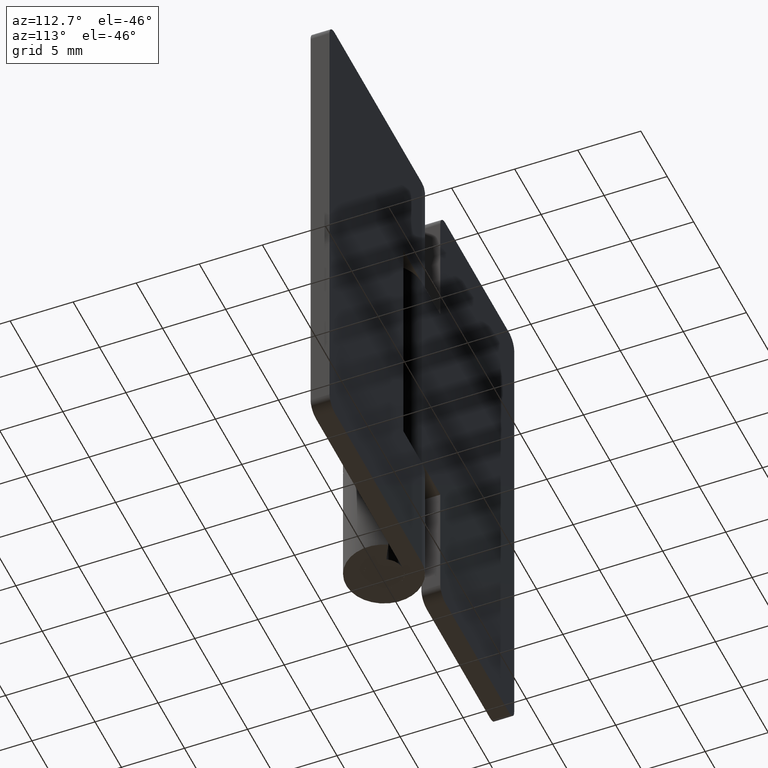
[diagram: clean part render]
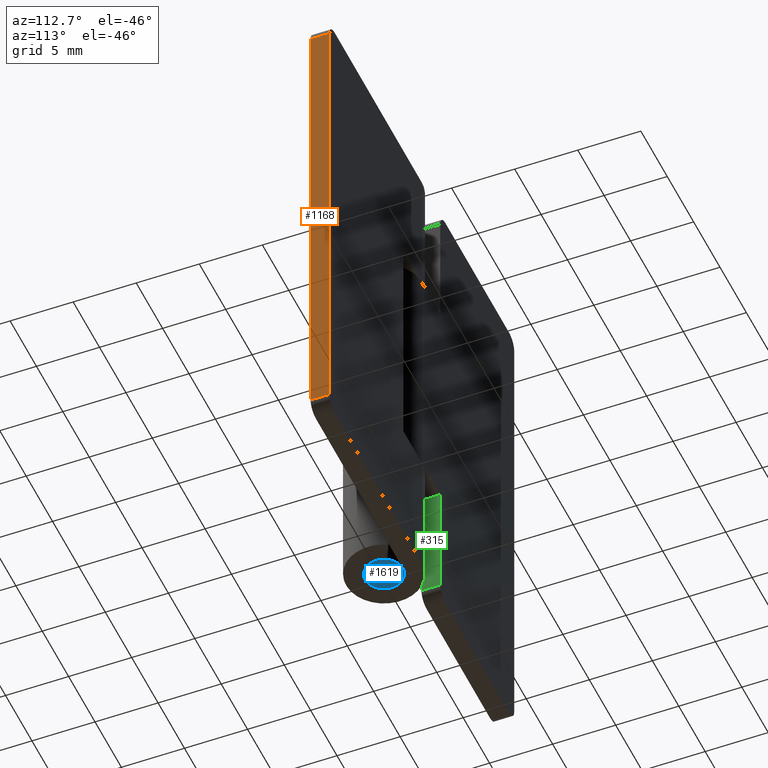
[diagram: same view with three faces highlighted in distinct colors, each labeled with its STEP entity id]
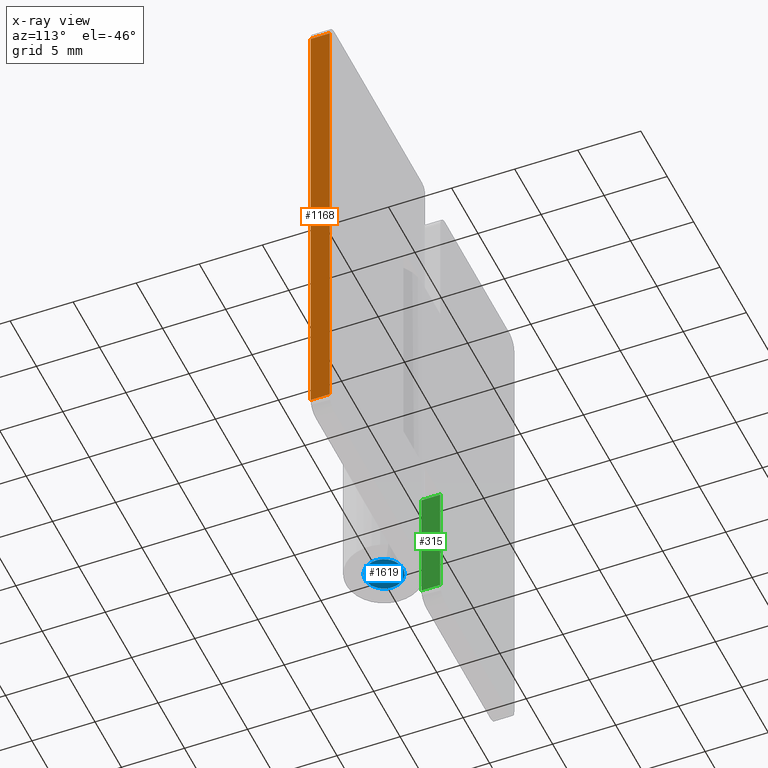
[diagram: x-ray of the same camera — body ghosted, the three highlighted faces saturated]
A machine part, auxiliary view with three faces highlighted in distinct colors.
The next image is the same camera in x-ray (body ghosted, the three faces saturated) — at least one of them is partly hidden behind the body in this view.
Their STEP definitions:

[orange] entity #1168 — the highlighted face is a freeform B-spline surface patch.
#725=CARTESIAN_POINT('',(17.500000000000000,3.0,1.0));
#726=VERTEX_POINT('',#725);
#742=CARTESIAN_POINT('',(17.500000000000000,1.500000000000000,1.0));
#743=VERTEX_POINT('',#742);
#744=CARTESIAN_POINT('',(17.500000000000000,1.500000000000000,1.0));
#745=CARTESIAN_POINT('',(17.500000000000000,3.0,1.0));
#746=QUASI_UNIFORM_CURVE('',1,(#744,#745),.UNSPECIFIED.,.F.,.U.);
#747=EDGE_CURVE('',#743,#726,#746,.T.);
#788=CARTESIAN_POINT('',(17.500000000000000,3.0,39.0));
#789=VERTEX_POINT('',#788);
#810=CARTESIAN_POINT('',(17.500000000000000,1.500000000000000,39.0));
#811=VERTEX_POINT('',#810);
#825=CARTESIAN_POINT('',(17.500000000000000,3.0,39.0));
#826=CARTESIAN_POINT('',(17.500000000000000,1.500000000000000,39.0));
#827=QUASI_UNIFORM_CURVE('',1,(#825,#826),.UNSPECIFIED.,.F.,.U.);
#828=EDGE_CURVE('',#789,#811,#827,.T.);
#1149=CARTESIAN_POINT('',(17.500000000000000,1.425075002907291,40.898099926348621));
#1150=CARTESIAN_POINT('',(17.500000000000000,1.425075002907291,-0.898100945588053));
#1151=CARTESIAN_POINT('',(17.500000000000000,3.074925037325845,40.898099926348621));
#1152=CARTESIAN_POINT('',(17.500000000000000,3.074925037325845,-0.898100945588053));
#1153=B_SPLINE_SURFACE_WITH_KNOTS('',1,1,((#1149,#1151),(#1150,#1152)),.UNSPECIFIED.,.F.,.F.,.U.,(2,2),(2,2),(0.0,41.796200871936684),(0.041708334948495,0.958291687403247),.UNSPECIFIED.);
#1154=CARTESIAN_POINT('',(17.500000000000000,1.500000000000000,39.0));
#1155=CARTESIAN_POINT('',(17.500000000000000,1.500000000000000,1.0));
#1156=QUASI_UNIFORM_CURVE('',1,(#1154,#1155),.UNSPECIFIED.,.F.,.U.);
#1157=EDGE_CURVE('',#811,#743,#1156,.T.);
#1158=ORIENTED_EDGE('',*,*,#1157,.T.);
#1159=ORIENTED_EDGE('',*,*,#747,.T.);
#1160=CARTESIAN_POINT('',(17.500000000000000,3.0,39.0));
#1161=CARTESIAN_POINT('',(17.500000000000000,3.0,1.0));
#1162=QUASI_UNIFORM_CURVE('',1,(#1160,#1161),.UNSPECIFIED.,.F.,.U.);
#1163=EDGE_CURVE('',#789,#726,#1162,.T.);
#1164=ORIENTED_EDGE('',*,*,#1163,.F.);
#1165=ORIENTED_EDGE('',*,*,#828,.T.);
#1166=EDGE_LOOP('',(#1158,#1159,#1164,#1165));
#1167=FACE_OUTER_BOUND('',#1166,.T.);
#1168=ADVANCED_FACE('',(#1167),#1153,.T.);

[blue] entity #1619 — the highlighted face is a freeform B-spline surface patch.
#1440=CARTESIAN_POINT('',(0.177048581627317,-1.489514618839295,-4.543085E-015));
#1441=VERTEX_POINT('',#1440);
#1442=CARTESIAN_POINT('',(-1.500000000000000,0.0,0.0));
#1443=VERTEX_POINT('',#1442);
#1444=CARTESIAN_POINT('',(0.177048581627317,-1.489514618839296,-4.543085E-015));
#1445=CARTESIAN_POINT('',(0.088834779655407,-1.500000000000000,0.0));
#1446=CARTESIAN_POINT('',(0.0,-1.500000000000000,0.0));
#1447=CARTESIAN_POINT('',(-1.500000000000000,-1.500000000000000,0.0));
#1448=CARTESIAN_POINT('',(-1.500000000000000,0.0,0.0));
#1456=(BOUNDED_CURVE()B_SPLINE_CURVE(2,(#1444,#1445,#1446,#1447,#1448),.UNSPECIFIED.,.F.,.U.)B_SPLINE_CURVE_WITH_KNOTS((3,2,3),(0.229562787845978,0.250000000000000,0.500000000000000),.UNSPECIFIED.)CURVE()GEOMETRIC_REPRESENTATION_ITEM()RATIONAL_B_SPLINE_CURVE((0.956027370289129,0.976056316594540,1.0,0.707106781186548,1.0))REPRESENTATION_ITEM(''));
#1457=EDGE_CURVE('',#1441,#1443,#1456,.T.);
#1498=CARTESIAN_POINT('',(-0.091572809322920,1.497202197631538,1.110223E-016));
#1499=VERTEX_POINT('',#1498);
#1505=CARTESIAN_POINT('',(-1.500000000000000,0.0,0.0));
#1506=CARTESIAN_POINT('',(-1.500000000000000,1.411059100319583,0.0));
#1507=CARTESIAN_POINT('',(-0.091572809322920,1.497202197631539,1.110223E-016));
#1515=(BOUNDED_CURVE()B_SPLINE_CURVE(2,(#1505,#1506,#1507),.UNSPECIFIED.,.F.,.U.)B_SPLINE_CURVE_WITH_KNOTS((3,3),(0.500000000000000,0.739332962237213),.UNSPECIFIED.)CURVE()GEOMETRIC_REPRESENTATION_ITEM()RATIONAL_B_SPLINE_CURVE((1.0,0.719603993288737,0.976072041663010))REPRESENTATION_ITEM(''));
#1516=EDGE_CURVE('',#1443,#1499,#1515,.T.);
#1543=CARTESIAN_POINT('',(1.500000000000000,0.0,0.0));
#1544=VERTEX_POINT('',#1543);
#1545=CARTESIAN_POINT('',(1.500000000000000,0.0,0.0));
#1546=CARTESIAN_POINT('',(1.500000000000001,-1.332264284254892,0.0));
#1547=CARTESIAN_POINT('',(0.177048581627317,-1.489514618839296,-4.543085E-015));
#1555=(BOUNDED_CURVE()B_SPLINE_CURVE(2,(#1545,#1546,#1547),.UNSPECIFIED.,.F.,.U.)B_SPLINE_CURVE_WITH_KNOTS((3,3),(0.0,0.229562787845978),.UNSPECIFIED.)CURVE()GEOMETRIC_REPRESENTATION_ITEM()RATIONAL_B_SPLINE_CURVE((1.0,0.731050464592008,0.956027370289129))REPRESENTATION_ITEM(''));
#1556=EDGE_CURVE('',#1544,#1441,#1555,.T.);
#1558=CARTESIAN_POINT('',(-0.091572809322920,1.497202197631538,1.110223E-016));
#1559=CARTESIAN_POINT('',(-0.045829144968576,1.500000000000000,0.0));
#1560=CARTESIAN_POINT('',(0.0,1.500000000000000,0.0));
#1561=CARTESIAN_POINT('',(1.500000000000000,1.500000000000000,0.0));
#1562=CARTESIAN_POINT('',(1.500000000000000,0.0,0.0));
#1570=(BOUNDED_CURVE()B_SPLINE_CURVE(2,(#1558,#1559,#1560,#1561,#1562),.UNSPECIFIED.,.F.,.U.)B_SPLINE_CURVE_WITH_KNOTS((3,2,3),(0.739332962237212,0.750000000000000,1.0),.UNSPECIFIED.)CURVE()GEOMETRIC_REPRESENTATION_ITEM()RATIONAL_B_SPLINE_CURVE((0.976072041663009,0.987502787897810,1.0,0.707106781186548,1.0))REPRESENTATION_ITEM(''));
#1571=EDGE_CURVE('',#1499,#1544,#1570,.T.);
#1608=CARTESIAN_POINT('',(-1.649849994185418,-1.649822796803121,0.0));
#1609=CARTESIAN_POINT('',(1.649850074651688,-1.649822796803121,0.0));
#1610=CARTESIAN_POINT('',(-1.649849994185418,1.649813489537839,0.0));
#1611=CARTESIAN_POINT('',(1.649850074651688,1.649813489537839,0.0));
#1612=B_SPLINE_SURFACE_WITH_KNOTS('',1,1,((#1608,#1610),(#1609,#1611)),.UNSPECIFIED.,.F.,.F.,.U.,(2,2),(2,2),(0.0,3.299700068837106),(0.0,3.299636286340959),.UNSPECIFIED.);
#1613=ORIENTED_EDGE('',*,*,#1556,.T.);
#1614=ORIENTED_EDGE('',*,*,#1457,.T.);
#1615=ORIENTED_EDGE('',*,*,#1516,.T.);
#1616=ORIENTED_EDGE('',*,*,#1571,.T.);
#1617=EDGE_LOOP('',(#1613,#1614,#1615,#1616));
#1618=FACE_OUTER_BOUND('',#1617,.T.);
#1619=ADVANCED_FACE('',(#1618),#1612,.F.);

[green] entity #315 — the highlighted face is a freeform B-spline surface patch.
#243=CARTESIAN_POINT('',(-3.500000000000000,1.500000000000000,1.0));
#244=VERTEX_POINT('',#243);
#265=CARTESIAN_POINT('',(-3.500000000000000,3.0,1.0));
#266=VERTEX_POINT('',#265);
#280=CARTESIAN_POINT('',(-3.500000000000000,1.500000000000000,1.0));
#281=CARTESIAN_POINT('',(-3.500000000000000,3.0,1.0));
#282=QUASI_UNIFORM_CURVE('',1,(#280,#281),.UNSPECIFIED.,.F.,.U.);
#283=EDGE_CURVE('',#244,#266,#282,.T.);
#288=CARTESIAN_POINT('',(-3.500000000000000,3.074924997092712,0.525475018412843));
#289=CARTESIAN_POINT('',(-3.500000000000000,3.074924997092712,10.974525236397010));
#290=CARTESIAN_POINT('',(-3.500000000000000,1.425074962674100,0.525475018412843));
#291=CARTESIAN_POINT('',(-3.500000000000000,1.425074962674100,10.974525236397010));
#292=B_SPLINE_SURFACE_WITH_KNOTS('',1,1,((#288,#290),(#289,#291)),.UNSPECIFIED.,.F.,.F.,.U.,(2,2),(2,2),(0.0,10.449050217984171),(0.041708334948495,0.958291687403247),.UNSPECIFIED.);
#293=CARTESIAN_POINT('',(-3.500000000000000,1.499999999999946,10.500000000000000));
#294=VERTEX_POINT('',#293);
#295=CARTESIAN_POINT('',(-3.500000000000000,1.499999999999946,10.500000000000000));
#296=CARTESIAN_POINT('',(-3.500000000000000,1.500000000000000,1.0));
#297=QUASI_UNIFORM_CURVE('',1,(#295,#296),.UNSPECIFIED.,.F.,.U.);
#298=EDGE_CURVE('',#294,#244,#297,.T.);
#299=ORIENTED_EDGE('',*,*,#298,.T.);
#300=ORIENTED_EDGE('',*,*,#283,.T.);
#301=CARTESIAN_POINT('',(-3.500000000000000,3.0,10.500000000000000));
#302=VERTEX_POINT('',#301);
#303=CARTESIAN_POINT('',(-3.500000000000000,3.0,1.0));
#304=CARTESIAN_POINT('',(-3.500000000000000,3.0,10.500000000000000));
#305=QUASI_UNIFORM_CURVE('',1,(#303,#304),.UNSPECIFIED.,.F.,.U.);
#306=EDGE_CURVE('',#266,#302,#305,.T.);
#307=ORIENTED_EDGE('',*,*,#306,.T.);
#308=CARTESIAN_POINT('',(-3.500000000000000,1.499999999999946,10.500000000000000));
#309=CARTESIAN_POINT('',(-3.500000000000000,3.0,10.500000000000000));
#310=QUASI_UNIFORM_CURVE('',1,(#308,#309),.UNSPECIFIED.,.F.,.U.);
#311=EDGE_CURVE('',#294,#302,#310,.T.);
#312=ORIENTED_EDGE('',*,*,#311,.F.);
#313=EDGE_LOOP('',(#299,#300,#307,#312));
#314=FACE_OUTER_BOUND('',#313,.T.);
#315=ADVANCED_FACE('',(#314),#292,.T.);